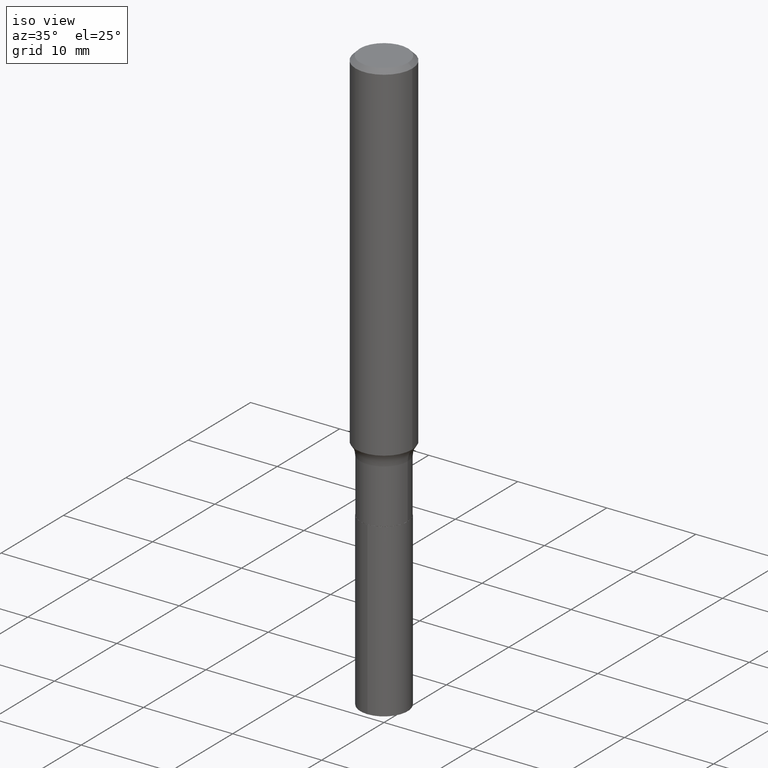
[diagram: clean part render]
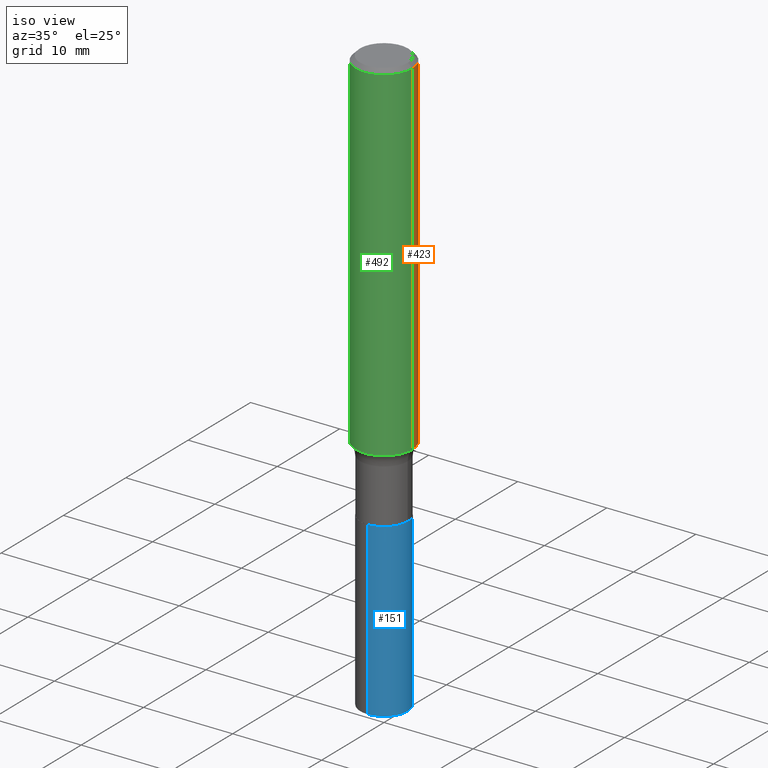
[diagram: same view with three faces highlighted in distinct colors, each labeled with its STEP entity id]
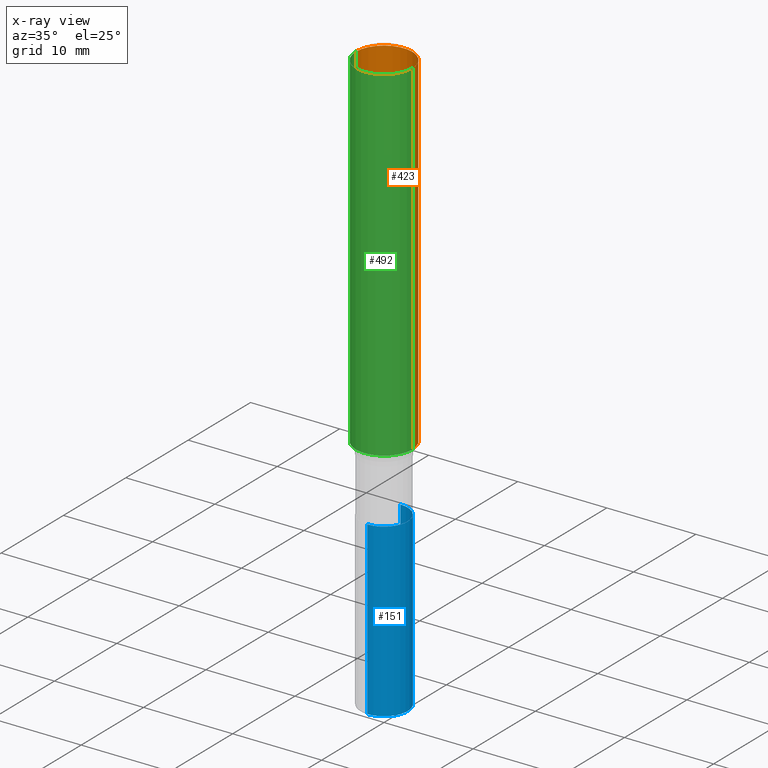
[diagram: x-ray of the same camera — body ghosted, the three highlighted faces saturated]
A machine part, iso view with three faces highlighted in distinct colors.
The next image is the same camera in x-ray (body ghosted, the three faces saturated) — at least one of them is partly hidden behind the body in this view.
Their STEP definitions:

[orange] entity #423 — the highlighted cylindrical surface (edge-blend (fillet) strip) has radius 3.175 mm, axis along (-0, 0, 1).
#2 = CARTESIAN_POINT ( 'NONE',  ( -0.1250000000000002220, -4.491829937990087601E-15, -1.540895635854323764 ) ) ;
#12 = DIRECTION ( 'NONE',  ( 1.000000000000000000, -6.982962677686266711E-15, 4.876176775795935232E-29 ) ) ;
#20 = ORIENTED_EDGE ( 'NONE', *, *, #194, .T. ) ;
#40 = CYLINDRICAL_SURFACE ( 'NONE', #143, 0.1250000000000001110 ) ;
#42 = FACE_OUTER_BOUND ( 'NONE', #165, .T. ) ;
#60 = VERTEX_POINT ( 'NONE', #2 ) ;
#67 = ORIENTED_EDGE ( 'NONE', *, *, #425, .F. ) ;
#74 = DIRECTION ( 'NONE',  ( 1.000000000000000000, -6.982962677686267499E-15, 0.000000000000000000 ) ) ;
#76 = CARTESIAN_POINT ( 'NONE',  ( 0.000000000000000000, 0.000000000000000000, 0.000000000000000000 ) ) ;
#86 = DIRECTION ( 'NONE',  ( -2.445468806185136597E-29, 3.491481338843145583E-15, 1.000000000000000000 ) ) ;
#96 = CARTESIAN_POINT ( 'NONE',  ( 0.1250000000000002220, -6.252878692400998539E-15, -1.540895635854323764 ) ) ;
#130 = LINE ( 'NONE', #295, #346 ) ;
#131 = ORIENTED_EDGE ( 'NONE', *, *, #345, .F. ) ;
#143 = AXIS2_PLACEMENT_3D ( 'NONE', #76, #86, #12 ) ;
#164 = CARTESIAN_POINT ( 'NONE',  ( -0.1250000000000000000, -1.834558396696634968E-15, -0.01875000000000013115 ) ) ;
#165 = EDGE_LOOP ( 'NONE', ( #430, #20, #67, #131 ) ) ;
#192 = AXIS2_PLACEMENT_3D ( 'NONE', #311, #195, #74 ) ;
#194 = EDGE_CURVE ( 'NONE', #60, #436, #130, .T. ) ;
#195 = DIRECTION ( 'NONE',  ( -2.445468806185136597E-29, 3.491481338843145583E-15, 1.000000000000000000 ) ) ;
#219 = AXIS2_PLACEMENT_3D ( 'NONE', #314, #235, #318 ) ;
#233 = VECTOR ( 'NONE', #301, 39.37007874015748143 ) ;
#235 = DIRECTION ( 'NONE',  ( -2.445468806185136597E-29, 3.491481338843145583E-15, 1.000000000000000000 ) ) ;
#242 = VERTEX_POINT ( 'NONE', #375 ) ;
#282 = VERTEX_POINT ( 'NONE', #96 ) ;
#295 = CARTESIAN_POINT ( 'NONE',  ( -0.1250000000000001110, 8.881784197001260212E-16, -6.148668862818637832E-30 ) ) ;
#301 = DIRECTION ( 'NONE',  ( -2.445468806185136877E-29, 3.491481338843145188E-15, 1.000000000000000000 ) ) ;
#311 = CARTESIAN_POINT ( 'NONE',  ( 3.768212211068559889E-29, -5.380008357690213622E-15, -1.540895635854323764 ) ) ;
#314 = CARTESIAN_POINT ( 'NONE',  ( 4.585254011597162998E-31, -6.546527510330944066E-17, -0.01875000000000013115 ) ) ;
#318 = DIRECTION ( 'NONE',  ( 1.000000000000000000, -6.982962677686266711E-15, 0.000000000000000000 ) ) ;
#333 = CARTESIAN_POINT ( 'NONE',  ( 0.1250000000000001110, -8.728703347107841277E-16, 6.095220969744924646E-30 ) ) ;
#345 = EDGE_CURVE ( 'NONE', #282, #242, #367, .T. ) ;
#346 = VECTOR ( 'NONE', #453, 39.37007874015748143 ) ;
#347 = CIRCLE ( 'NONE', #192, 0.1250000000000001943 ) ;
#367 = LINE ( 'NONE', #333, #233 ) ;
#375 = CARTESIAN_POINT ( 'NONE',  ( 0.1250000000000000000, -9.383356098140928781E-16, -0.01875000000000013115 ) ) ;
#406 = EDGE_CURVE ( 'NONE', #282, #60, #347, .T. ) ;
#423 = ADVANCED_FACE ( 'NONE', ( #42 ), #40, .T. ) ;
#425 = EDGE_CURVE ( 'NONE', #242, #436, #426, .T. ) ;
#426 = CIRCLE ( 'NONE', #219, 0.1250000000000000000 ) ;
#430 = ORIENTED_EDGE ( 'NONE', *, *, #406, .T. ) ;
#436 = VERTEX_POINT ( 'NONE', #164 ) ;
#453 = DIRECTION ( 'NONE',  ( -2.445468806185136877E-29, 3.491481338843145188E-15, 1.000000000000000000 ) ) ;

[blue] entity #151 — the highlighted cylindrical surface (edge-blend (fillet) strip) has radius 2.6543 mm, axis along (-0, 0, 1).
#4 = CARTESIAN_POINT ( 'NONE',  ( -7.297195998181512181E-16, -0.1045000000000090162, -2.592051276562145734 ) ) ;
#8 = EDGE_CURVE ( 'NONE', #18, #58, #70, .T. ) ;
#11 = CARTESIAN_POINT ( 'NONE',  ( 7.425171588693677723E-16, 0.1044999999999909057, -2.592051276562146622 ) ) ;
#18 = VERTEX_POINT ( 'NONE', #4 ) ;
#30 = VERTEX_POINT ( 'NONE', #11 ) ;
#41 = CARTESIAN_POINT ( 'NONE',  ( -7.297195998181698549E-16, -0.1045000000000063933, -1.833999999999999853 ) ) ;
#58 = VERTEX_POINT ( 'NONE', #41 ) ;
#70 = LINE ( 'NONE', #337, #149 ) ;
#79 = CARTESIAN_POINT ( 'NONE',  ( 6.338762166731291806E-29, -9.050124974246680744E-15, -2.592051276562146178 ) ) ;
#115 = VECTOR ( 'NONE', #348, 39.37007874015748143 ) ;
#142 = DIRECTION ( 'NONE',  ( -2.445444567542754060E-29, 3.491516049958615080E-15, 1.000000000000000000 ) ) ;
#149 = VECTOR ( 'NONE', #227, 39.37007874015748143 ) ;
#151 = ADVANCED_FACE ( 'NONE', ( #401 ), #354, .T. ) ;
#159 = VERTEX_POINT ( 'NONE', #274 ) ;
#162 = DIRECTION ( 'NONE',  ( -2.445444567542754060E-29, 3.491516049958615080E-15, 1.000000000000000000 ) ) ;
#175 = EDGE_LOOP ( 'NONE', ( #449, #268, #245, #213 ) ) ;
#196 = LINE ( 'NONE', #204, #115 ) ;
#197 = CARTESIAN_POINT ( 'NONE',  ( 4.484989790543541016E-29, -6.403376775438329103E-15, -1.834000000000000075 ) ) ;
#204 = CARTESIAN_POINT ( 'NONE',  ( 7.425171588693493327E-16, 0.1044999999999935841, -1.834000000000000519 ) ) ;
#213 = ORIENTED_EDGE ( 'NONE', *, *, #8, .F. ) ;
#227 = DIRECTION ( 'NONE',  ( -2.445444567542754060E-29, 3.491516049958615475E-15, 1.000000000000000000 ) ) ;
#245 = ORIENTED_EDGE ( 'NONE', *, *, #302, .F. ) ;
#254 = CARTESIAN_POINT ( 'NONE',  ( 4.484989790543541016E-29, -6.403376775438329103E-15, -1.834000000000000075 ) ) ;
#268 = ORIENTED_EDGE ( 'NONE', *, *, #415, .T. ) ;
#274 = CARTESIAN_POINT ( 'NONE',  ( 7.425171588693679696E-16, 0.1044999999999935703, -1.834000000000000519 ) ) ;
#297 = CIRCLE ( 'NONE', #341, 0.1044999999999999818 ) ;
#302 = EDGE_CURVE ( 'NONE', #58, #159, #297, .T. ) ;
#337 = CARTESIAN_POINT ( 'NONE',  ( -7.297195998181698549E-16, -0.1045000000000063933, -1.833999999999999853 ) ) ;
#340 = AXIS2_PLACEMENT_3D ( 'NONE', #197, #162, #465 ) ;
#341 = AXIS2_PLACEMENT_3D ( 'NONE', #254, #142, #419 ) ;
#348 = DIRECTION ( 'NONE',  ( -2.445444567542754060E-29, 3.491516049958615475E-15, 1.000000000000000000 ) ) ;
#352 = AXIS2_PLACEMENT_3D ( 'NONE', #79, #388, #390 ) ;
#354 = CYLINDRICAL_SURFACE ( 'NONE', #340, 0.1044999999999999818 ) ;
#388 = DIRECTION ( 'NONE',  ( -2.445444567542754060E-29, 3.491516049958615080E-15, 1.000000000000000000 ) ) ;
#390 = DIRECTION ( 'NONE',  ( -6.982962677686266711E-15, -1.000000000000000000, 5.228417212754571700E-15 ) ) ;
#401 = FACE_OUTER_BOUND ( 'NONE', #175, .T. ) ;
#415 = EDGE_CURVE ( 'NONE', #30, #159, #196, .T. ) ;
#419 = DIRECTION ( 'NONE',  ( -6.982962677686266711E-15, -1.000000000000000000, 2.614208606377285850E-15 ) ) ;
#422 = CIRCLE ( 'NONE', #352, 0.1044999999999999818 ) ;
#434 = EDGE_CURVE ( 'NONE', #18, #30, #422, .T. ) ;
#449 = ORIENTED_EDGE ( 'NONE', *, *, #434, .T. ) ;
#465 = DIRECTION ( 'NONE',  ( -6.982962677686266711E-15, -1.000000000000000000, 2.614208606377285850E-15 ) ) ;

[green] entity #492 — the highlighted cylindrical surface (edge-blend (fillet) strip) has radius 3.175 mm, axis along (-0, 0, 1).
#1 = CYLINDRICAL_SURFACE ( 'NONE', #189, 0.1250000000000001110 ) ;
#2 = CARTESIAN_POINT ( 'NONE',  ( -0.1250000000000002220, -4.491829937990087601E-15, -1.540895635854323764 ) ) ;
#6 = DIRECTION ( 'NONE',  ( -2.445468806185136597E-29, 3.491481338843145583E-15, 1.000000000000000000 ) ) ;
#10 = FACE_OUTER_BOUND ( 'NONE', #411, .T. ) ;
#53 = AXIS2_PLACEMENT_3D ( 'NONE', #269, #350, #313 ) ;
#60 = VERTEX_POINT ( 'NONE', #2 ) ;
#96 = CARTESIAN_POINT ( 'NONE',  ( 0.1250000000000002220, -6.252878692400998539E-15, -1.540895635854323764 ) ) ;
#108 = ORIENTED_EDGE ( 'NONE', *, *, #345, .T. ) ;
#116 = EDGE_CURVE ( 'NONE', #436, #242, #266, .T. ) ;
#130 = LINE ( 'NONE', #295, #346 ) ;
#152 = CARTESIAN_POINT ( 'NONE',  ( 0.000000000000000000, 0.000000000000000000, 0.000000000000000000 ) ) ;
#164 = CARTESIAN_POINT ( 'NONE',  ( -0.1250000000000000000, -1.834558396696634968E-15, -0.01875000000000013115 ) ) ;
#189 = AXIS2_PLACEMENT_3D ( 'NONE', #152, #6, #270 ) ;
#194 = EDGE_CURVE ( 'NONE', #60, #436, #130, .T. ) ;
#228 = CIRCLE ( 'NONE', #260, 0.1250000000000001943 ) ;
#231 = EDGE_CURVE ( 'NONE', #60, #282, #228, .T. ) ;
#233 = VECTOR ( 'NONE', #301, 39.37007874015748143 ) ;
#242 = VERTEX_POINT ( 'NONE', #375 ) ;
#260 = AXIS2_PLACEMENT_3D ( 'NONE', #326, #477, #405 ) ;
#266 = CIRCLE ( 'NONE', #53, 0.1250000000000000000 ) ;
#269 = CARTESIAN_POINT ( 'NONE',  ( 4.585254011597162998E-31, -6.546527510330944066E-17, -0.01875000000000013115 ) ) ;
#270 = DIRECTION ( 'NONE',  ( 1.000000000000000000, -6.982962677686266711E-15, 4.876176775795935232E-29 ) ) ;
#282 = VERTEX_POINT ( 'NONE', #96 ) ;
#295 = CARTESIAN_POINT ( 'NONE',  ( -0.1250000000000001110, 8.881784197001260212E-16, -6.148668862818637832E-30 ) ) ;
#301 = DIRECTION ( 'NONE',  ( -2.445468806185136877E-29, 3.491481338843145188E-15, 1.000000000000000000 ) ) ;
#313 = DIRECTION ( 'NONE',  ( 1.000000000000000000, -6.982962677686266711E-15, 0.000000000000000000 ) ) ;
#326 = CARTESIAN_POINT ( 'NONE',  ( 3.768212211068559889E-29, -5.380008357690213622E-15, -1.540895635854323764 ) ) ;
#333 = CARTESIAN_POINT ( 'NONE',  ( 0.1250000000000001110, -8.728703347107841277E-16, 6.095220969744924646E-30 ) ) ;
#335 = ORIENTED_EDGE ( 'NONE', *, *, #116, .F. ) ;
#345 = EDGE_CURVE ( 'NONE', #282, #242, #367, .T. ) ;
#346 = VECTOR ( 'NONE', #453, 39.37007874015748143 ) ;
#350 = DIRECTION ( 'NONE',  ( -2.445468806185136597E-29, 3.491481338843145583E-15, 1.000000000000000000 ) ) ;
#367 = LINE ( 'NONE', #333, #233 ) ;
#375 = CARTESIAN_POINT ( 'NONE',  ( 0.1250000000000000000, -9.383356098140928781E-16, -0.01875000000000013115 ) ) ;
#395 = ORIENTED_EDGE ( 'NONE', *, *, #194, .F. ) ;
#405 = DIRECTION ( 'NONE',  ( 1.000000000000000000, -6.982962677686267499E-15, 0.000000000000000000 ) ) ;
#411 = EDGE_LOOP ( 'NONE', ( #395, #443, #108, #335 ) ) ;
#436 = VERTEX_POINT ( 'NONE', #164 ) ;
#443 = ORIENTED_EDGE ( 'NONE', *, *, #231, .T. ) ;
#453 = DIRECTION ( 'NONE',  ( -2.445468806185136877E-29, 3.491481338843145188E-15, 1.000000000000000000 ) ) ;
#477 = DIRECTION ( 'NONE',  ( -2.445468806185136597E-29, 3.491481338843145583E-15, 1.000000000000000000 ) ) ;
#492 = ADVANCED_FACE ( 'NONE', ( #10 ), #1, .T. ) ;